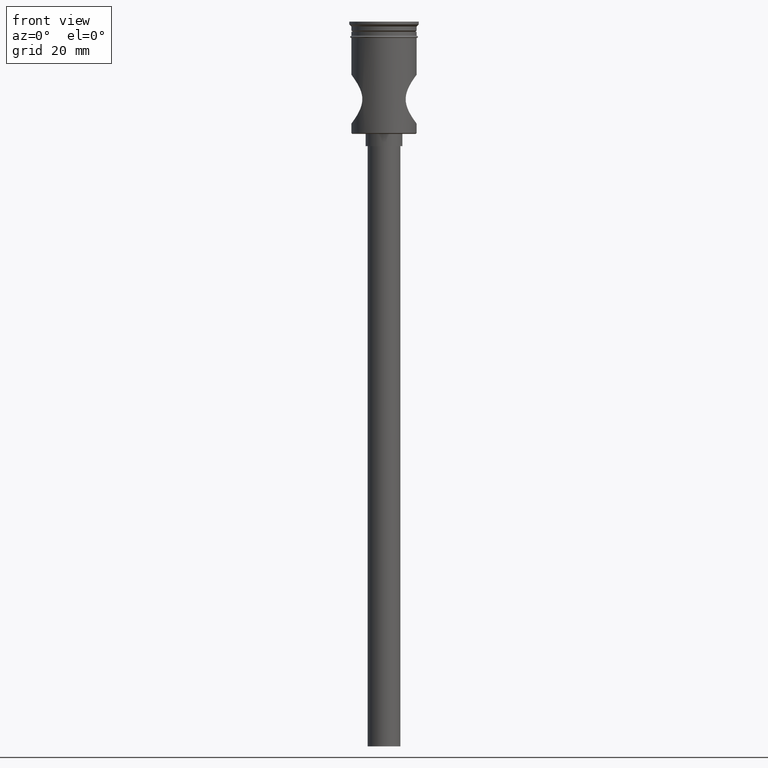
[diagram: clean part render]
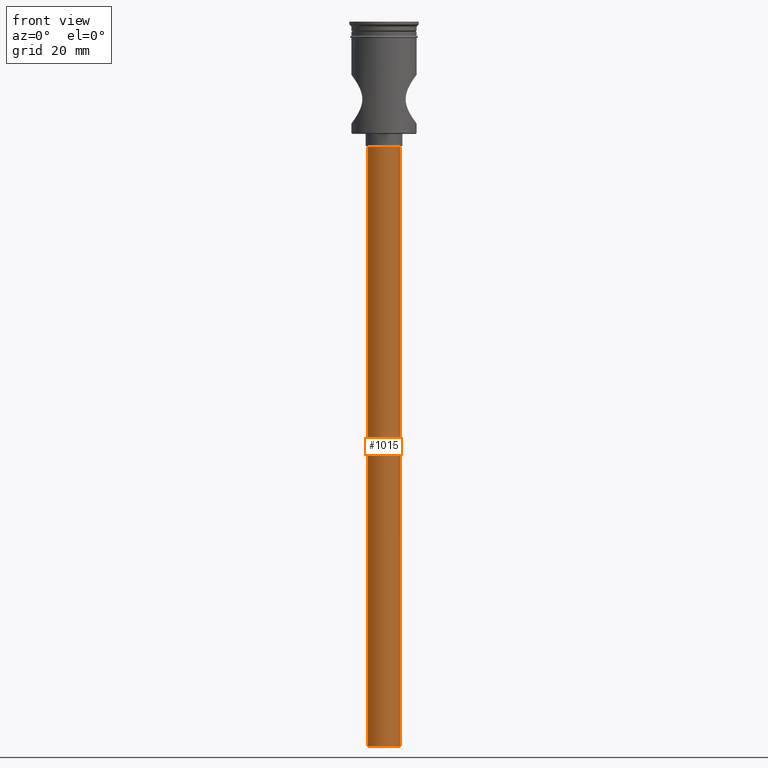
[diagram: same view with one face highlighted and labeled with its STEP entity id]
A machine part, front view. The second image highlights one B-rep face of the part: STEP entity #1015.
In plain terms, the highlighted cylindrical surface (edge-blend (fillet) strip) has radius 4 mm, axis along (-0, -0, 1).
Its self-contained STEP definition (entity closure, byte-faithful):
#22 = CIRCLE ( 'NONE', #1198, 4.000000000000000000 ) ;
#45 = DIRECTION ( 'NONE',  ( 0.000000000000000000, 0.000000000000000000, -1.000000000000000000 ) ) ;
#48 = EDGE_LOOP ( 'NONE', ( #1219, #1439, #1302, #1447 ) ) ;
#63 = VERTEX_POINT ( 'NONE', #524 ) ;
#72 = CARTESIAN_POINT ( 'NONE',  ( 0.000000000000000000, 0.000000000000000000, -177.5000000000000000 ) ) ;
#177 = AXIS2_PLACEMENT_3D ( 'NONE', #72, #45, #636 ) ;
#273 = CIRCLE ( 'NONE', #177, 4.000000000000000000 ) ;
#301 = LINE ( 'NONE', #551, #514 ) ;
#429 = LINE ( 'NONE', #784, #496 ) ;
#454 = CARTESIAN_POINT ( 'NONE',  ( 0.000000000000000000, 0.000000000000000000, -30.50000000000000000 ) ) ;
#496 = VECTOR ( 'NONE', #1273, 1000.000000000000000 ) ;
#502 = VERTEX_POINT ( 'NONE', #1346 ) ;
#514 = VECTOR ( 'NONE', #1031, 1000.000000000000000 ) ;
#524 = CARTESIAN_POINT ( 'NONE',  ( 4.000000000000000000, 0.000000000000000000, -177.5000000000000000 ) ) ;
#551 = CARTESIAN_POINT ( 'NONE',  ( -4.000000000000000000, 4.898587196589412829E-16, -177.5000000000000000 ) ) ;
#572 = DIRECTION ( 'NONE',  ( 1.000000000000000000, 0.000000000000000000, 0.000000000000000000 ) ) ;
#591 = EDGE_CURVE ( 'NONE', #502, #1471, #301, .T. ) ;
#636 = DIRECTION ( 'NONE',  ( -1.000000000000000000, 0.000000000000000000, 0.000000000000000000 ) ) ;
#663 = AXIS2_PLACEMENT_3D ( 'NONE', #1142, #1492, #572 ) ;
#667 = FACE_OUTER_BOUND ( 'NONE', #48, .T. ) ;
#732 = VERTEX_POINT ( 'NONE', #1057 ) ;
#784 = CARTESIAN_POINT ( 'NONE',  ( 4.000000000000000000, 0.000000000000000000, -177.5000000000000000 ) ) ;
#801 = DIRECTION ( 'NONE',  ( 0.000000000000000000, 0.000000000000000000, -1.000000000000000000 ) ) ;
#898 = CYLINDRICAL_SURFACE ( 'NONE', #663, 4.000000000000000000 ) ;
#1015 = ADVANCED_FACE ( 'NONE', ( #667 ), #898, .T. ) ;
#1031 = DIRECTION ( 'NONE',  ( -0.000000000000000000, -0.000000000000000000, 1.000000000000000000 ) ) ;
#1040 = EDGE_CURVE ( 'NONE', #732, #1471, #22, .T. ) ;
#1044 = DIRECTION ( 'NONE',  ( -1.000000000000000000, 0.000000000000000000, 0.000000000000000000 ) ) ;
#1057 = CARTESIAN_POINT ( 'NONE',  ( 4.000000000000000000, 0.000000000000000000, -30.50000000000000000 ) ) ;
#1082 = EDGE_CURVE ( 'NONE', #63, #732, #429, .T. ) ;
#1142 = CARTESIAN_POINT ( 'NONE',  ( 0.000000000000000000, 0.000000000000000000, -177.5000000000000000 ) ) ;
#1198 = AXIS2_PLACEMENT_3D ( 'NONE', #454, #801, #1044 ) ;
#1219 = ORIENTED_EDGE ( 'NONE', *, *, #591, .F. ) ;
#1273 = DIRECTION ( 'NONE',  ( -0.000000000000000000, -0.000000000000000000, 1.000000000000000000 ) ) ;
#1276 = CARTESIAN_POINT ( 'NONE',  ( -4.000000000000000000, 4.898587196589412829E-16, -30.50000000000000000 ) ) ;
#1302 = ORIENTED_EDGE ( 'NONE', *, *, #1082, .T. ) ;
#1328 = EDGE_CURVE ( 'NONE', #63, #502, #273, .T. ) ;
#1346 = CARTESIAN_POINT ( 'NONE',  ( -4.000000000000000000, 4.898587196589412829E-16, -177.5000000000000000 ) ) ;
#1439 = ORIENTED_EDGE ( 'NONE', *, *, #1328, .F. ) ;
#1447 = ORIENTED_EDGE ( 'NONE', *, *, #1040, .T. ) ;
#1471 = VERTEX_POINT ( 'NONE', #1276 ) ;
#1492 = DIRECTION ( 'NONE',  ( -0.000000000000000000, -0.000000000000000000, 1.000000000000000000 ) ) ;